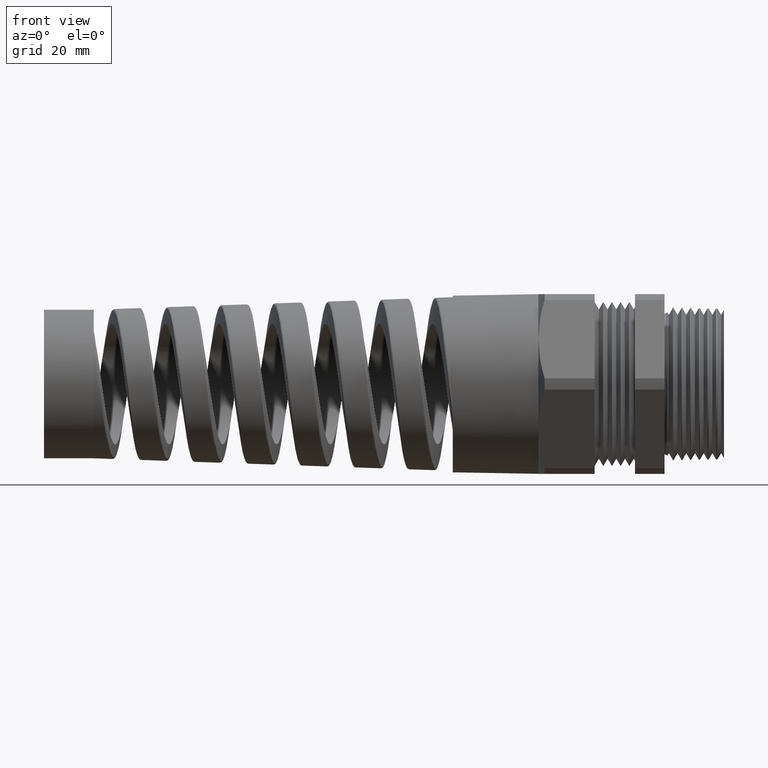
[diagram: clean part render]
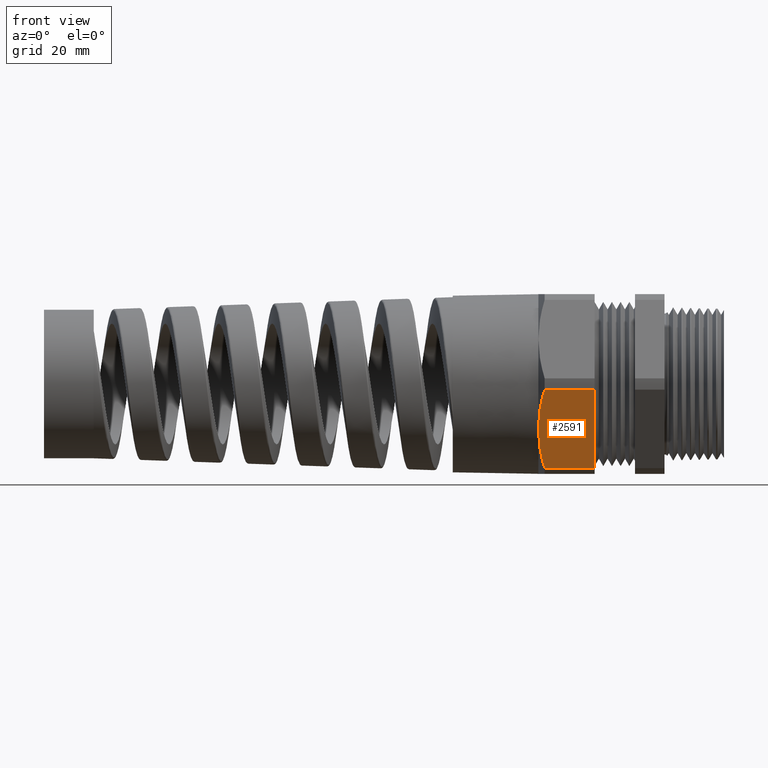
[diagram: same view with one face highlighted and labeled with its STEP entity id]
A machine part, front view. The second image highlights one B-rep face of the part: STEP entity #2591.
In plain terms, the highlighted planar face has unit normal (0, -0.866, -0.5).
Its self-contained STEP definition (entity closure, byte-faithful):
#2136 = VERTEX_POINT ( 'NONE', #10005 ) ;
#2542 = ORIENTED_EDGE ( 'NONE', *, *, #2544, .T. ) ;
#2544 = EDGE_CURVE ( 'NONE', #13696, #13577, #10742, .T. ) ;
#2545 = ORIENTED_EDGE ( 'NONE', *, *, #13694, .T. ) ;
#2548 = EDGE_CURVE ( 'NONE', #2136, #13567, #10725, .T. ) ;
#2550 = ORIENTED_EDGE ( 'NONE', *, *, #2548, .T. ) ;
#2579 = ORIENTED_EDGE ( 'NONE', *, *, #13580, .F. ) ;
#2581 = ORIENTED_EDGE ( 'NONE', *, *, #2582, .T. ) ;
#2582 = EDGE_CURVE ( 'NONE', #13556, #2136, #10794, .T. ) ;
#2589 = EDGE_LOOP ( 'NONE', ( #2579, #2581, #2550, #2545, #2542 ) ) ;
#2591 = ADVANCED_FACE ( 'NONE', ( #10871 ), #10795, .T. ) ;
#10005 = CARTESIAN_POINT ( 'NONE',  ( -0.9125000000000002000, -0.5629165124598849400, -0.3250000000000001800 ) ) ;
#10709 = CARTESIAN_POINT ( 'NONE',  ( -0.8814205714001800400, -0.4258267530969211400, -0.5624464284140443500 ) ) ;
#10710 = CARTESIAN_POINT ( 'NONE',  ( -0.8927551590989980500, -0.4528752911945963500, -0.5155969861584086500 ) ) ;
#10711 = CARTESIAN_POINT ( 'NONE',  ( -0.9044328033704853700, -0.4938841810957506600, -0.4445675052876110800 ) ) ;
#10713 = CARTESIAN_POINT ( 'NONE',  ( -0.9074375322794259200, -0.5076265280763749800, -0.4207650621019292100 ) ) ;
#10714 = CARTESIAN_POINT ( 'NONE',  ( -0.9114778356147181800, -0.5352725060425331800, -0.3728808236396137200 ) ) ;
#10715 = CARTESIAN_POINT ( 'NONE',  ( -0.9124999999999998700, -0.5491430333788607200, -0.3488563655653210100 ) ) ;
#10717 = CARTESIAN_POINT ( 'NONE',  ( -0.9125000000000002000, -0.5629165124598849400, -0.3250000000000001800 ) ) ;
#10725 = B_SPLINE_CURVE_WITH_KNOTS ( 'NONE', 3,
 ( #10717, #10715, #10714, #10713, #10711, #10710, #10709, #10793 ),
 .UNSPECIFIED., .F., .F.,
 ( 4, 2, 2, 4 ),
 ( 0.008402769293125148300, 0.01048919587064709200, 0.01257562244816903500, 0.01674847560321292300 ),
 .UNSPECIFIED. ) ;
#10728 = DIRECTION ( 'NONE',  ( 0.0000000000000000000, -0.5000000000000003300, 0.8660254037844383700 ) ) ;
#10729 = VECTOR ( 'NONE', #10728, 39.37007874015748100 ) ;
#10741 = CARTESIAN_POINT ( 'NONE',  ( -0.5058333333333334700, -0.4145165124598848000, -0.5820363398432217800 ) ) ;
#10742 = LINE ( 'NONE', #10741, #10729 ) ;
#10793 = CARTESIAN_POINT ( 'NONE',  ( -0.8674666790032094000, -0.3989927496919442600, -0.6089242856819405700 ) ) ;
#10794 = B_SPLINE_CURVE_WITH_KNOTS ( 'NONE', 3,
 ( #10870, #10869, #10868, #10867, #10866, #10865 ),
 .UNSPECIFIED., .F., .F.,
 ( 4, 2, 4 ),
 ( 2.361308568648023400E-007, 0.004201502711991007100, 0.008402769293125148300 ),
 .UNSPECIFIED. ) ;
#10795 = PLANE ( 'NONE',  #10863 ) ;
#10860 = DIRECTION ( 'NONE',  ( 0.0000000000000000000, 0.5000000000000003300, -0.8660254037844383700 ) ) ;
#10861 = DIRECTION ( 'NONE',  ( 0.0000000000000000000, -0.8660254037844384900, -0.5000000000000004400 ) ) ;
#10862 = CARTESIAN_POINT ( 'NONE',  ( -2.992185896283379200, -0.7268402752278255700, -0.04107571431805972400 ) ) ;
#10863 = AXIS2_PLACEMENT_3D ( 'NONE', #10862, #10861, #10860 ) ;
#10865 = CARTESIAN_POINT ( 'NONE',  ( -0.9125000000000002000, -0.5629165124598849400, -0.3250000000000001800 ) ) ;
#10866 = CARTESIAN_POINT ( 'NONE',  ( -0.9125000000000003100, -0.5906510409558671800, -0.2769623875209921100 ) ) ;
#10867 = CARTESIAN_POINT ( 'NONE',  ( -0.9083465192945222600, -0.6181565215413856700, -0.2293214976602746800 ) ) ;
#10868 = CARTESIAN_POINT ( 'NONE',  ( -0.8928224553762588200, -0.6727694882672526900, -0.1347290645390047900 ) ) ;
#10869 = CARTESIAN_POINT ( 'NONE',  ( -0.8814868053153364100, -0.6998789008317274400, -0.08777418461398804600 ) ) ;
#10870 = CARTESIAN_POINT ( 'NONE',  ( -0.8674666790032095100, -0.7268402752278255700, -0.04107571431805973800 ) ) ;
#10871 = FACE_OUTER_BOUND ( 'NONE', #2589, .T. ) ;
#12775 = CARTESIAN_POINT ( 'NONE',  ( -0.8674666790032095100, -0.7268402752278255700, -0.04107571431805973800 ) ) ;
#12822 = CARTESIAN_POINT ( 'NONE',  ( -0.8674666790032094000, -0.3989927496919442600, -0.6089242856819405700 ) ) ;
#12887 = DIRECTION ( 'NONE',  ( 1.000000000000000000, 0.0000000000000000000, 0.0000000000000000000 ) ) ;
#12888 = VECTOR ( 'NONE', #12887, 39.37007874015748100 ) ;
#12889 = CARTESIAN_POINT ( 'NONE',  ( -2.992185896283379200, -0.7268402752278255700, -0.04107571431805972400 ) ) ;
#12890 = LINE ( 'NONE', #12889, #12888 ) ;
#12892 = CARTESIAN_POINT ( 'NONE',  ( -0.5058333333333336900, -0.7268402752278255700, -0.04107571431805972400 ) ) ;
#12915 = CARTESIAN_POINT ( 'NONE',  ( -0.5058333333333336900, -0.3989927496919442600, -0.6089242856819405700 ) ) ;
#12916 = DIRECTION ( 'NONE',  ( 1.000000000000000000, 0.0000000000000000000, 0.0000000000000000000 ) ) ;
#12917 = VECTOR ( 'NONE', #12916, 39.37007874015748100 ) ;
#12918 = CARTESIAN_POINT ( 'NONE',  ( -2.992185896283379200, -0.3989927496919442600, -0.6089242856819405700 ) ) ;
#12919 = LINE ( 'NONE', #12918, #12917 ) ;
#13556 = VERTEX_POINT ( 'NONE', #12775 ) ;
#13567 = VERTEX_POINT ( 'NONE', #12822 ) ;
#13577 = VERTEX_POINT ( 'NONE', #12892 ) ;
#13580 = EDGE_CURVE ( 'NONE', #13556, #13577, #12890, .T. ) ;
#13694 = EDGE_CURVE ( 'NONE', #13567, #13696, #12919, .T. ) ;
#13696 = VERTEX_POINT ( 'NONE', #12915 ) ;